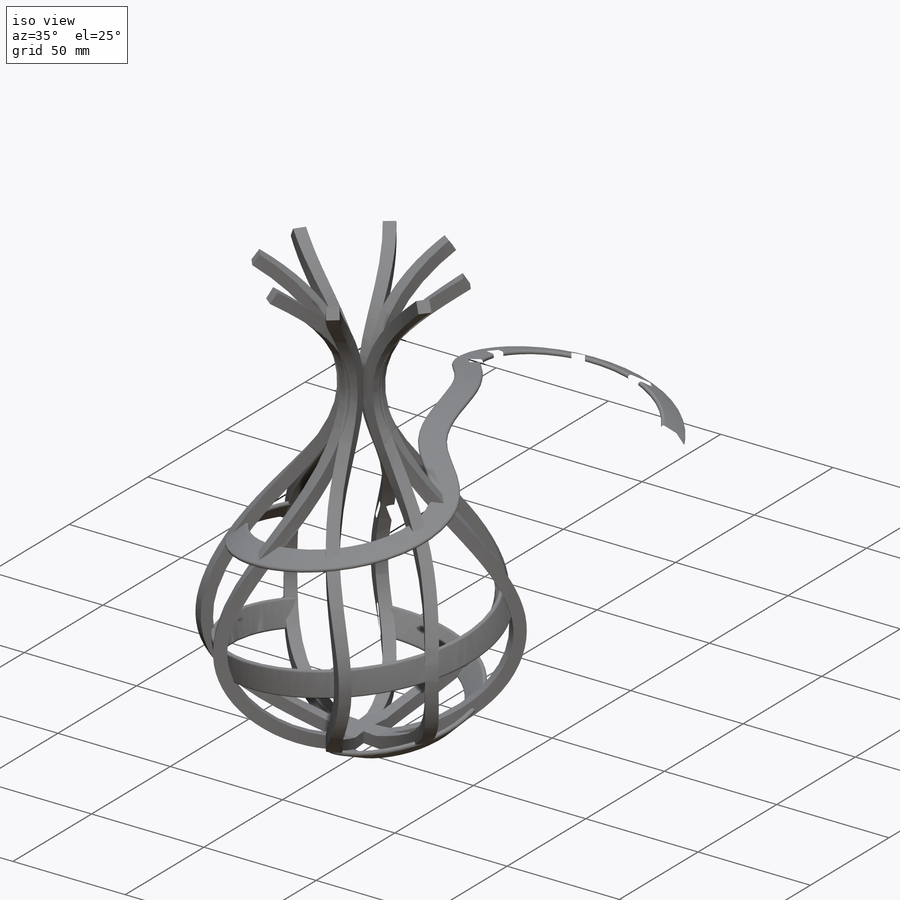
[diagram: iso view]
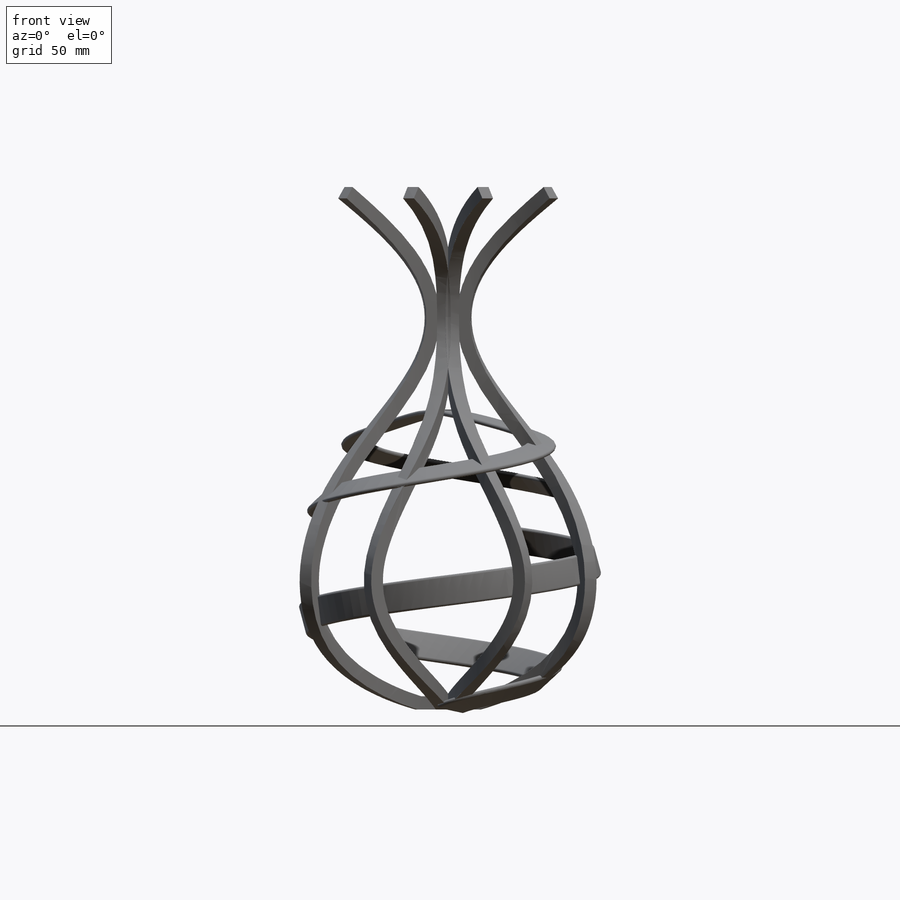
[diagram: front view]
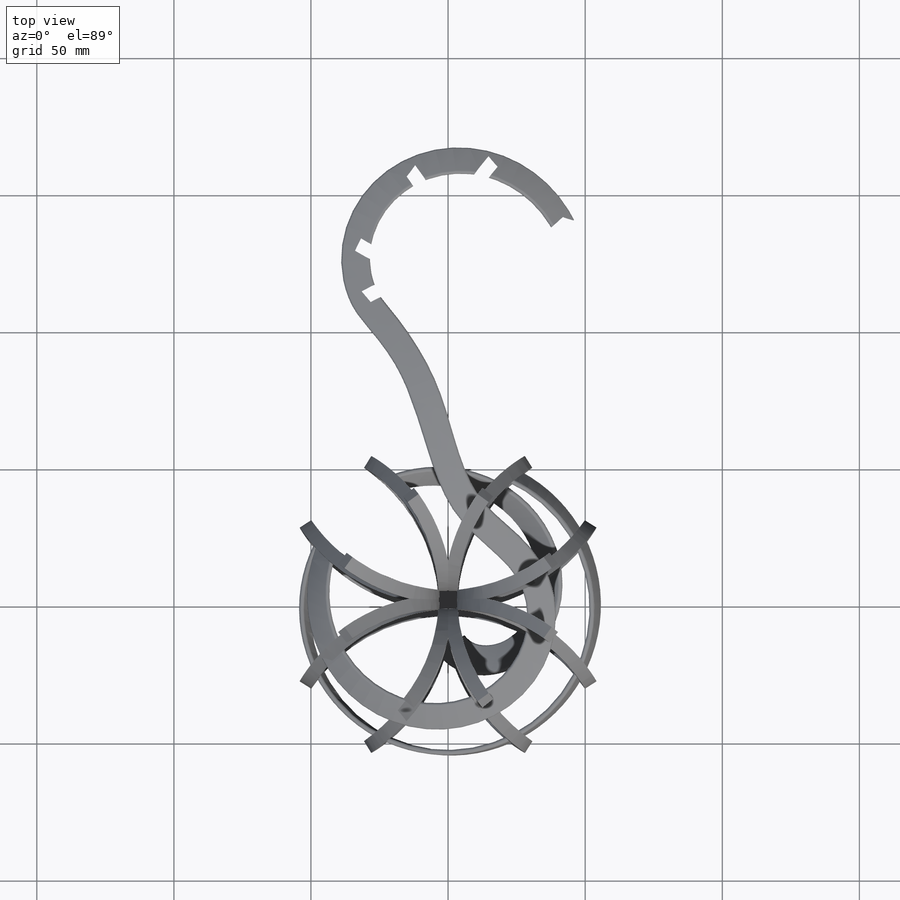
[diagram: top view]
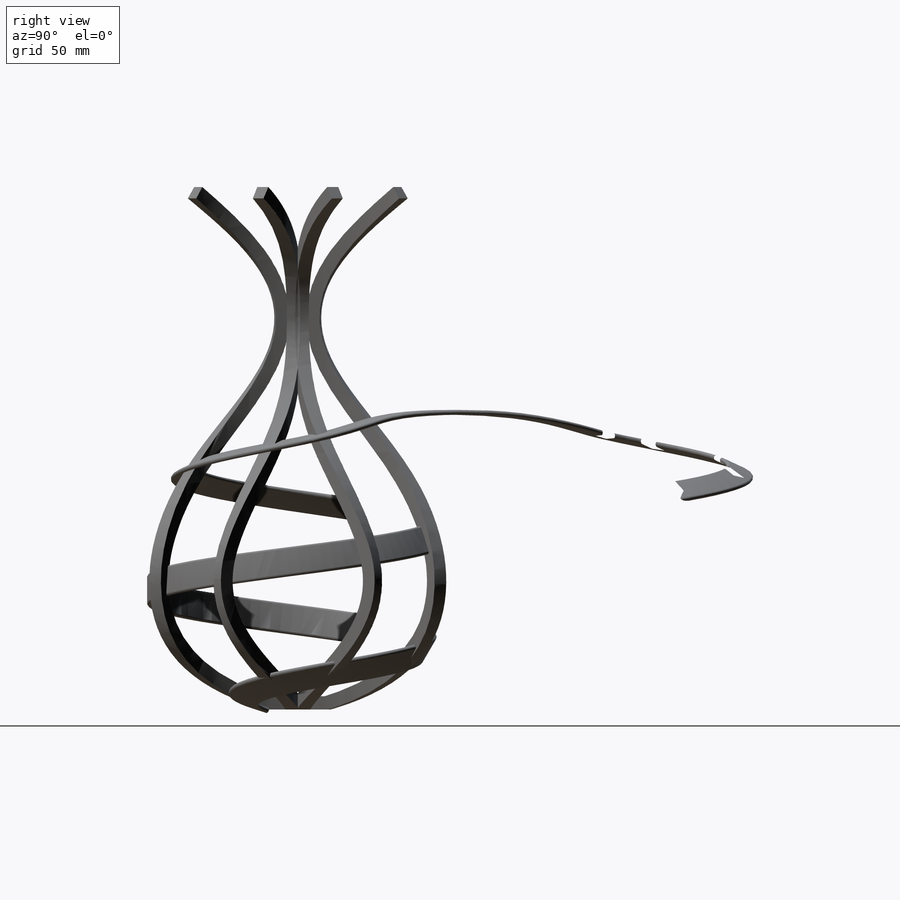
[diagram: right view]
SOLIDWORKS PART (.sldprt)
format: sldprt  version: not decoded by parser v0  size: 2,686,464 bytes
history: native  units: mm
features: sketch x15, plane x7, pattern_circular x3, mirror x2, material x1, extrude x1, boolean_combine x1 (+9 scaffold rows collapsed)
feature tree (39):
  scaffold x9  (default folders/planes/origin — collapsed)
  material  "Material <nicht festgelegt>"
  plane  "Ebene vorne"
  plane  "Ebene oben"
  plane  "Ebene rechts"
  sketch  "Skizze1"  dims[D1=200.0mm D2=5.0mm]
  sketch  "Skizze4"
  extrude  "Aufsatz-Linear austragen2"  Depth=225mm
  sketch  "Skizze5"
  sketch  "Skizze6"  dims[D1=720.0deg]
  plane  "Ebene1"
  sketch  "Skizze7"  dims[D1=10.0mm D2=2.0mm]
  plane  "Ebene2"  Offset=60mm
  sketch  "Skizze8"
  sketch  "Skizze9"  dims[D1=~217.152822mm]
  pattern_circular  "Kreismuster1"  Count=4  [1 undecoded]
  boolean_combine  "Kombinieren1"
  mirror  "Spiegeln2"
  sketch  "Skizze10"
  mirror  "Spiegeln3"
  sketch  "Skizze11"  dims[D1=~64.838845mm]
  sketch  "Skizze12"  dims[D1=~217.153181mm]
  pattern_circular  "Oberfläche-Austragung2"  [2 undecoded]
  sketch  "Skizze13"  dims[D1=~0.974134mm]
  sketch  "Skizze14"  dims[D1=~218.398681mm]
  pattern_circular  "Oberfläche-Austragung3"  [2 undecoded]
  sketch  "3D-Skizze1"
  plane  "Ebene3"
  sketch  "Skizze15"  dims[c1.D1=~0.275044mm c1.D2=~1.546318mm c2.D1=10.0mm c2.D2=2.0mm]
  plane  "Ebene4"
  sketch  "Skizze16"  dims[D1=2.0mm D2=10.0mm]
decode coverage: 12 of 22 modeling features carry decoded parameters
note: ~ marks probable driven/reference dimensions
note: 5 parameter values undecoded
note: suppression state not decoded; provenance and decode notes live in map.json
